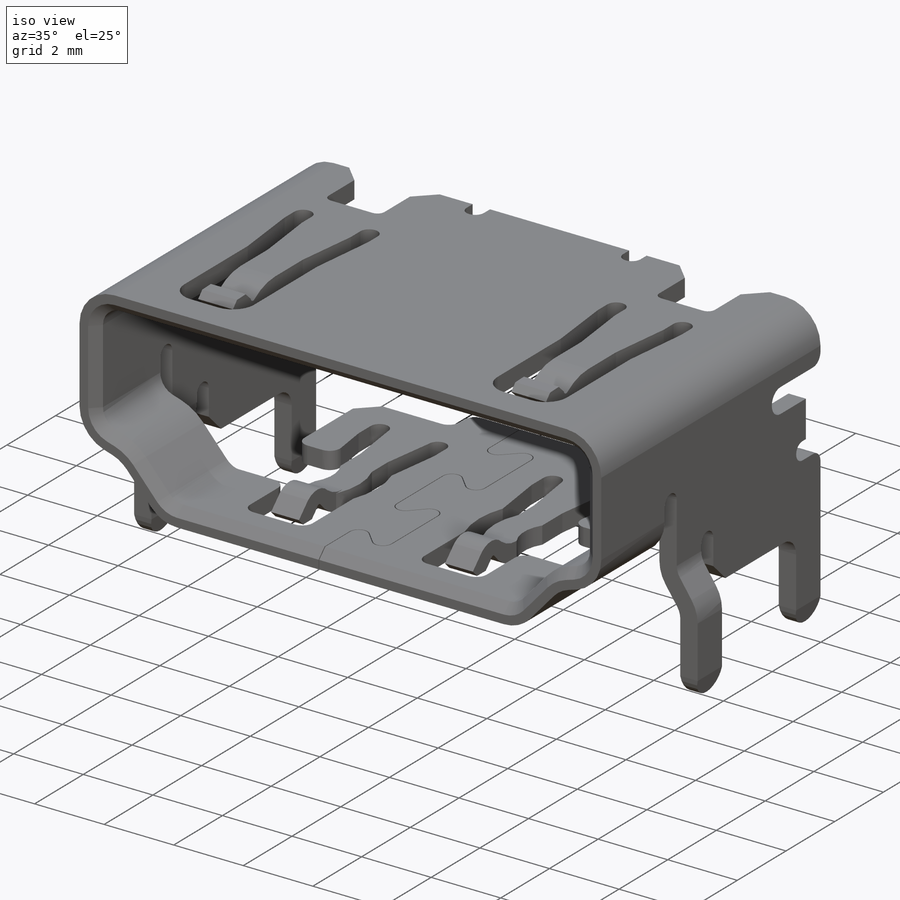
[diagram: iso view]
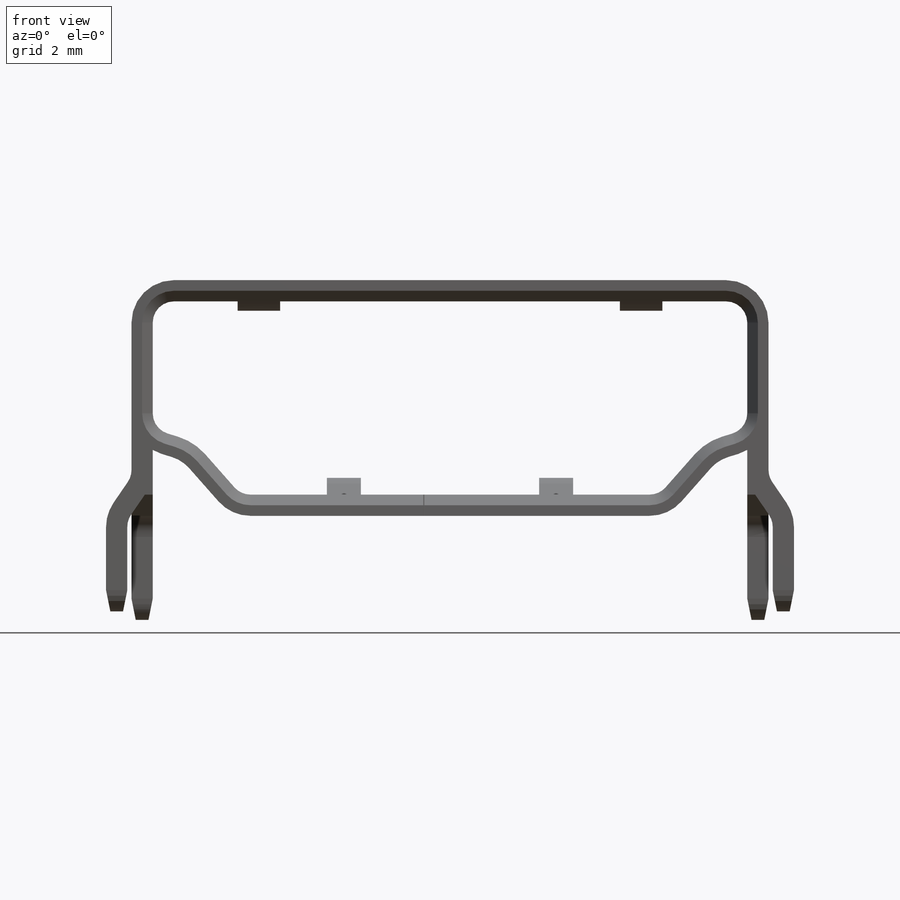
[diagram: front view]
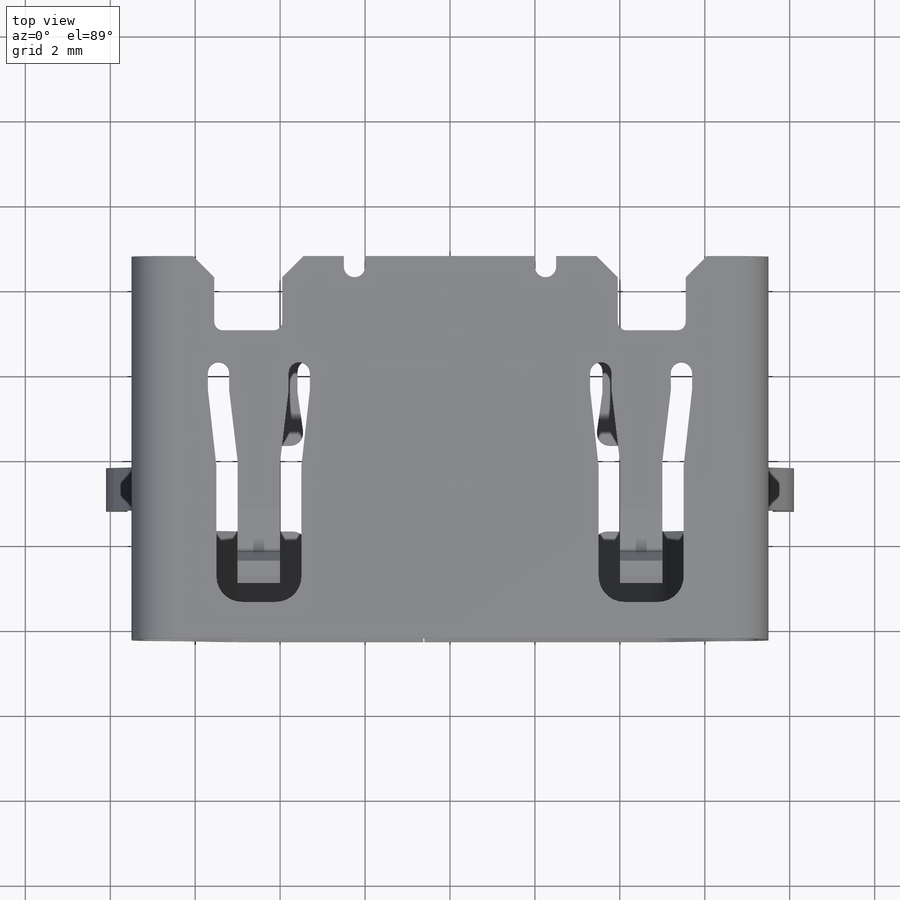
[diagram: top view]
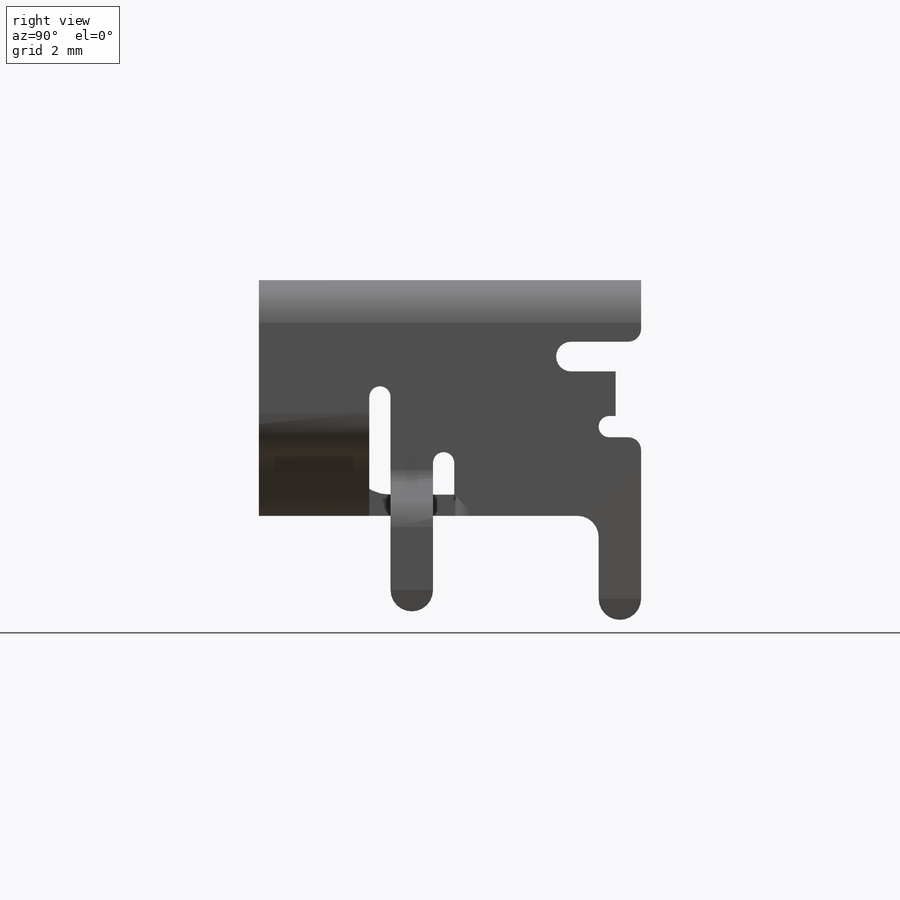
[diagram: right view]
SOLIDWORKS PART (.sldprt)
format: sldprt  version: not decoded by parser v0  size: 900,608 bytes
history: native  units: mm
features: sketch x11, mirror x7, cut_extrude x5, extrude x4, material x1, chamfer x1, plane x1, sweep x1, fillet x1 (+12 scaffold rows collapsed)
feature tree (44):
  scaffold x12  (default folders/planes/origin — collapsed)
  material  "Material <not specified>"
  sketch  "Esboço2"  dims[D1=0.5mm]
  extrude  "Ressalto-extrusão1"  Depth=8.3mm
  chamfer  "Chanfro1"  Distance=0.25mm Angle=45deg
  sketch  "Esboço3"  dims[c1.D11=0.3mm c1.D1=0.5mm c1.D2=2.8mm c1.D3=2.6mm c2.D2=3.0mm c2.D4=0.15mm c2.D5=0.3mm c2.D6=0.3mm c2.D7=1.35mm c2.D8=0.7mm c2.D9=1.05mm c2.D10=1.05mm]
  cut_extrude  "Corte-extrusão1"  Depth=3mm
  plane  "Plano1"
  mirror  "Espelhar1"
  sketch  "Esboço6"  dims[D7=0.3mm D14=0.5mm D1=1.05mm D2=0.15mm D3=0.5mm D4=0.45mm D5=0.3mm D6=0.3mm D8=3.5mm D9=1.0mm D10=1.45mm D11=0.5mm D12=0.5mm D13=2.4mm D15=0.5mm D16=0.5mm D17=0.75mm D18=0.5mm D19=0.17mm]
  extrude  "Ressalto-extrusão3"  Depth=0.5mm
  mirror  "Espelhar2"
  sketch  "Esboço8"  dims[D8=0.75mm D9=0.75mm D1=0.131mm D2=0.424mm D3=0.337mm D4=0.492mm D5=0.131mm D6=0.424mm D7=1.99mm]
  sketch  "Esboço9"
  sweep  "Varredura1"
  fillet  "Filete1"  Radius=0.499mm
  mirror  "Espelhar3"
  sketch  "Esboço10"  dims[D13=0.2mm D14=0.2mm D19=0.6mm D1=0.45mm D2=0.5mm D3=0.5mm D4=1.05mm D5=0.2mm D6=0.2mm D7=1.05mm D8=0.5mm D9=1.2mm D10=0.95mm D11=0.25mm D12=0.5mm D15=1.0mm D16=0.85mm D17=2.0mm D18=3.2mm D20=3.0327mm D21=1.0mm D22=0.5mm D23=0.2mm D24=1.8mm D25=0.5mm D26=0.4mm D27=0.4mm D28=1.68mm D29=1.8mm D30=0.4mm D31=0.5mm D32=0.4mm D33=1.68mm D34=0.2mm]
  cut_extrude  "Corte-extrusão2"  Depth=1mm
  mirror  "Espelhar4"
  sketch  "Esboço11"  dims[c1.D17=0.3mm c1.D18=0.3mm c1.D19=2.3mm c1.D21=1.8mm c1.D25=1.0mm c1.D35=0.3mm c1.D46=0.3mm c1.D47=0.3mm c1.D48=0.3mm c1.D1=1.0mm c1.D2=0.3mm c1.D3=0.3mm c1.D4=1.15mm c1.D5=0.3mm c1.D6=1.2mm c1.D7=0.3mm c1.D8=1.668mm c1.D9=1.564mm c1.D10=1.468mm c1.D11=0.2mm c1.D12=0.5mm c1.D13=0.5mm c1.D14=0.2mm c1.D15=1.4mm c1.D16=0.66mm c1.D20=1.4648mm c1.D22=0.8mm c1.D23=0.27mm c1.D24=1.0519mm c1.D26=0.8257mm c1.D27=0.1895mm c1.D28=1.4015mm c1.D29=0.5mm c1.D30=0.5mm c1.D31=0.1271mm c1.D32=0.9084mm c1.D33=0.2971mm c1.D34=0.3416mm c1.D36=0.4299mm c1.D37=0.3mm c1.D38=0.3mm c1.D39=2.0mm c1.D40=0.5mm c1.D41=0.5mm c1.D42=1.7mm c1.D43=0.3mm c1.D44=0.2mm c1.D45=0.3mm c2.D46=0.3mm]
  cut_extrude  "Corte-extrusão3"  Depth=1mm
  mirror  "Espelhar5"
  sketch  "Esboço12"  dims[D9=0.25mm D10=0.25mm D30=0.25mm D31=0.25mm D32=0.25mm D33=0.25mm D34=0.25mm D35=0.25mm D1=1.39mm D2=0.4285mm D3=0.175mm D4=0.3429mm D5=0.3499mm D6=0.4285mm D7=0.175mm D8=1.9mm D11=0.175mm D12=0.3499mm D13=0.4285mm D14=0.4285mm D15=0.3429mm D16=1.9mm D17=0.175mm D18=0.175mm D19=0.175mm D20=0.175mm D21=0.175mm D22=0.3499mm D23=0.3499mm D24=1.9mm D25=0.4285mm D26=0.4285mm D27=0.4285mm D28=0.3429mm D29=1.25mm D36=0.01mm D37=0.01mm]
  cut_extrude  "Corte-extrusão4"  Depth=1mm
  sketch  "Esboço14"  dims[D14=1.0mm D15=0.6mm D16=0.1mm D17=1.5mm D1=0.2188mm D2=0.6242mm D3=0.798mm D4=0.0437mm D5=0.3766mm D6=0.3751mm D7=0.1764mm D8=0.1771mm D9=0.3536mm D10=0.1994mm D11=0.1987mm D12=0.073mm D13=0.133mm]
  extrude  "Ressalto-extrusão4"  Depth=0.8mm
  sketch  "Esboço15"  dims[D15=0.1mm D16=1.5mm D17=0.6mm D18=1.0mm D1=0.8744mm D2=0.1269mm D3=0.2064mm D4=0.3534mm D5=0.1716mm D6=0.3882mm D7=0.7616mm D8=0.2813mm D9=0.085mm D10=0.1948mm D11=0.0102mm D12=0.1818mm D13=0.3664mm D14=0.0511mm]
  extrude  "Ressalto-extrusão5"  Depth=1mm
  mirror  "Espelhar6"
  sketch  "Esboço16"  dims[D1=0.1mm D2=0.1mm D3=0.1mm D4=0.1mm]
  cut_extrude  "Corte-extrusão5"  Depth=11mm
  mirror  "Espelhar7"
decode coverage: 21 of 30 modeling features carry decoded parameters
note: suppression state not decoded; provenance and decode notes live in map.json
